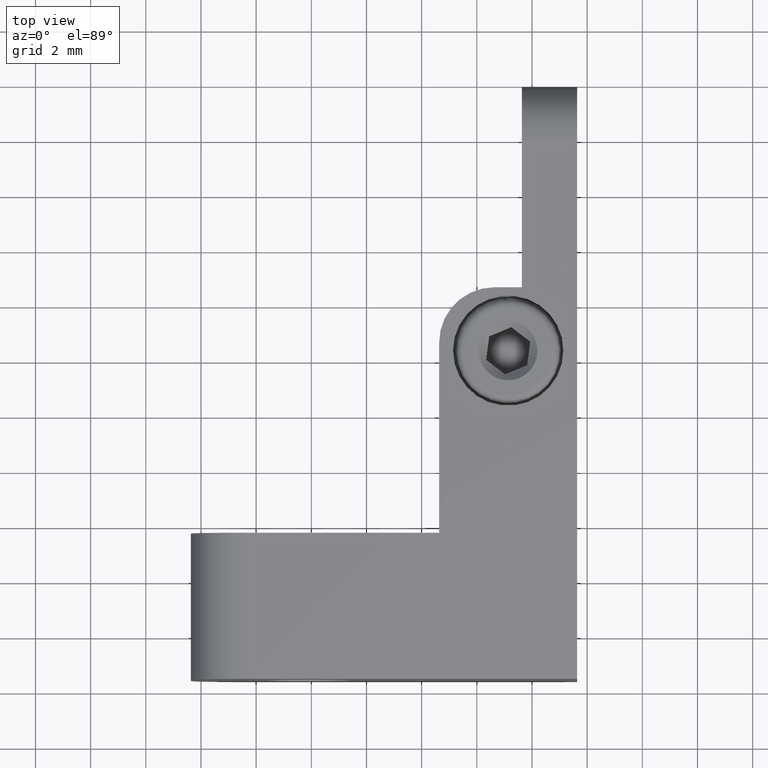
[diagram: clean part render]
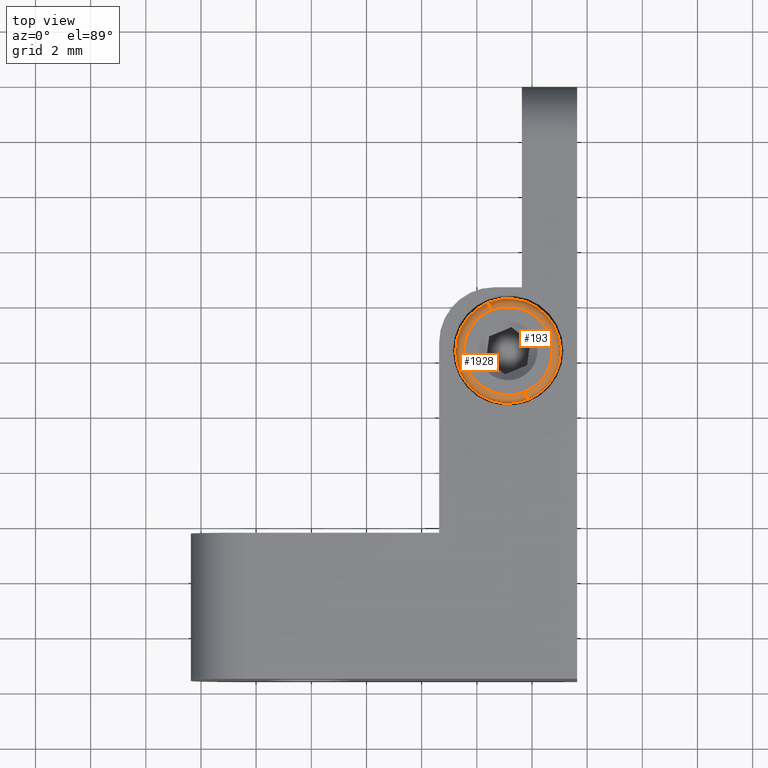
[diagram: same view with one multi-face feature highlighted, each face labeled with its STEP entity id]
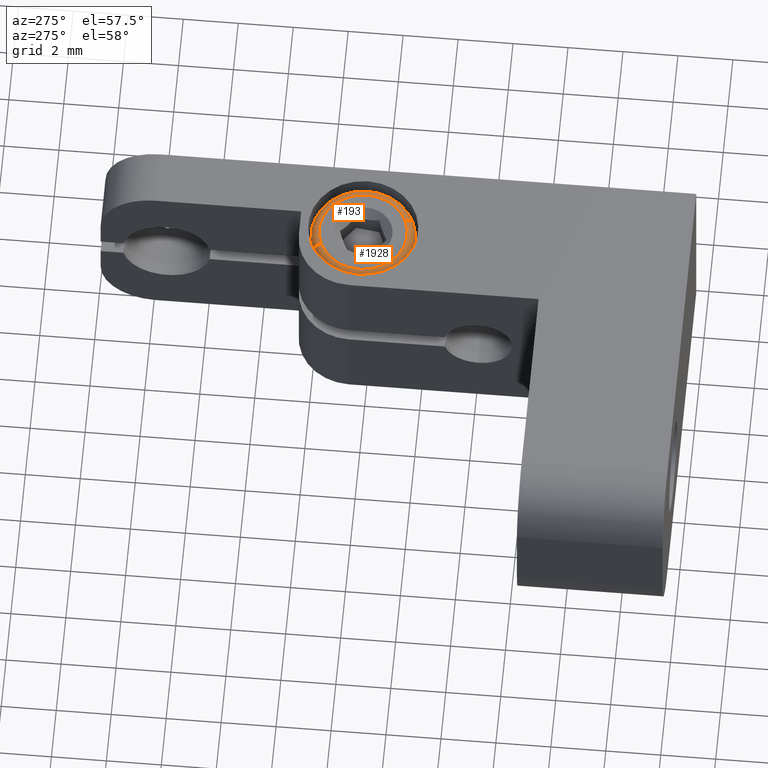
[diagram: same view with one multi-face feature highlighted, each face labeled with its STEP entity id]
A machine part, top view. The highlighted faces form ONE feature: a constant-radius fillet chain: 2 tangent blend faces with common blend radius 0.3 mm. The faces share edges in the B-rep.
A second angle (auxiliary view) of the same feature is appended — it is thin or edge-on in the first view.
Their STEP definitions:
[1] entity #1928 (Torus):
#125 = CIRCLE ( 'NONE', #1569, 1.600000000000013634 ) ;
#149 = CARTESIAN_POINT ( 'NONE',  ( -1.054711873393889420E-16, 1.700000000000000178, -1.899999999999999689 ) ) ;
#210 = DIRECTION ( 'NONE',  ( 5.551115123125734015E-17, 0.000000000000000000, 1.000000000000000000 ) ) ;
#257 = CIRCLE ( 'NONE', #1348, 0.2999999999999999334 ) ;
#286 = CIRCLE ( 'NONE', #947, 0.2999999999999999334 ) ;
#378 = DIRECTION ( 'NONE',  ( -0.000000000000000000, -1.000000000000000000, -0.000000000000000000 ) ) ;
#380 = DIRECTION ( 'NONE',  ( -1.000000000000000000, 0.000000000000000000, 5.551115123125734631E-17 ) ) ;
#393 = CIRCLE ( 'NONE', #1061, 1.900000000000016342 ) ;
#521 = FACE_OUTER_BOUND ( 'NONE', #1875, .T. ) ;
#554 = EDGE_CURVE ( 'NONE', #1201, #1514, #125, .T. ) ;
#556 = DIRECTION ( 'NONE',  ( 6.695352868347794976E-17, 0.000000000000000000, -1.000000000000000000 ) ) ;
#577 = CARTESIAN_POINT ( 'NONE',  ( 8.881784197001251584E-17, 1.999999999999998224, 1.600000000000013634 ) ) ;
#600 = VERTEX_POINT ( 'NONE', #1238 ) ;
#832 = CARTESIAN_POINT ( 'NONE',  ( 1.071256458935656835E-16, 1.700000000000000178, -1.600000000000013634 ) ) ;
#947 = AXIS2_PLACEMENT_3D ( 'NONE', #1523, #380, #2031 ) ;
#1025 = DIRECTION ( 'NONE',  ( 0.000000000000000000, 1.000000000000000000, 0.000000000000000000 ) ) ;
#1051 = DIRECTION ( 'NONE',  ( 0.000000000000000000, 1.000000000000000000, 0.000000000000000000 ) ) ;
#1061 = AXIS2_PLACEMENT_3D ( 'NONE', #1086, #378, #210 ) ;
#1086 = CARTESIAN_POINT ( 'NONE',  ( 0.000000000000000000, 1.700000000000000178, 0.000000000000000000 ) ) ;
#1152 = CARTESIAN_POINT ( 'NONE',  ( 1.171686751960863474E-16, 1.999999999999998224, -1.599999999999999867 ) ) ;
#1195 = CARTESIAN_POINT ( 'NONE',  ( 0.000000000000000000, 1.700000000000000178, 0.000000000000000000 ) ) ;
#1201 = VERTEX_POINT ( 'NONE', #1152 ) ;
#1238 = CARTESIAN_POINT ( 'NONE',  ( 3.381540791773859922E-16, 1.700000000000000178, 1.899999999999999689 ) ) ;
#1348 = AXIS2_PLACEMENT_3D ( 'NONE', #832, #1502, #556 ) ;
#1400 = DIRECTION ( 'NONE',  ( 5.551115123125735247E-17, 0.000000000000000000, 1.000000000000000000 ) ) ;
#1437 = EDGE_CURVE ( 'NONE', #2132, #1201, #257, .T. ) ;
#1469 = ORIENTED_EDGE ( 'NONE', *, *, #2029, .T. ) ;
#1502 = DIRECTION ( 'NONE',  ( 1.000000000000000000, -0.000000000000000000, 6.695352868347797441E-17 ) ) ;
#1514 = VERTEX_POINT ( 'NONE', #577 ) ;
#1522 = CARTESIAN_POINT ( 'NONE',  ( 0.000000000000000000, 1.999999999999998224, 0.000000000000000000 ) ) ;
#1523 = CARTESIAN_POINT ( 'NONE',  ( 8.881784197001251584E-17, 1.700000000000000178, 1.600000000000013634 ) ) ;
#1569 = AXIS2_PLACEMENT_3D ( 'NONE', #1522, #1051, #1400 ) ;
#1706 = DIRECTION ( 'NONE',  ( 5.551115123125734631E-17, 0.000000000000000000, 1.000000000000000000 ) ) ;
#1839 = AXIS2_PLACEMENT_3D ( 'NONE', #1195, #1025, #1706 ) ;
#1875 = EDGE_LOOP ( 'NONE', ( #2103, #2072, #1469, #1924 ) ) ;
#1914 = TOROIDAL_SURFACE ( 'NONE', #1839, 1.599999999999999867, 0.2999999999999999889 ) ;
#1924 = ORIENTED_EDGE ( 'NONE', *, *, #554, .F. ) ;
#1928 = ADVANCED_FACE ( 'NONE', ( #521 ), #1914, .T. ) ;
#1988 = EDGE_CURVE ( 'NONE', #600, #2132, #393, .T. ) ;
#2029 = EDGE_CURVE ( 'NONE', #600, #1514, #286, .T. ) ;
#2031 = DIRECTION ( 'NONE',  ( 5.551115123125734631E-17, 0.000000000000000000, 1.000000000000000000 ) ) ;
#2072 = ORIENTED_EDGE ( 'NONE', *, *, #1988, .F. ) ;
#2103 = ORIENTED_EDGE ( 'NONE', *, *, #1437, .F. ) ;
#2132 = VERTEX_POINT ( 'NONE', #149 ) ;
[2] entity #193 (Torus):
#68 = DIRECTION ( 'NONE',  ( 5.551115123125735247E-17, 0.000000000000000000, 1.000000000000000000 ) ) ;
#87 = FACE_OUTER_BOUND ( 'NONE', #288, .T. ) ;
#89 = AXIS2_PLACEMENT_3D ( 'NONE', #437, #1425, #1235 ) ;
#149 = CARTESIAN_POINT ( 'NONE',  ( -1.054711873393889420E-16, 1.700000000000000178, -1.899999999999999689 ) ) ;
#193 = ADVANCED_FACE ( 'NONE', ( #87 ), #1214, .T. ) ;
#257 = CIRCLE ( 'NONE', #1348, 0.2999999999999999334 ) ;
#286 = CIRCLE ( 'NONE', #947, 0.2999999999999999334 ) ;
#288 = EDGE_LOOP ( 'NONE', ( #2120, #931, #469, #1159 ) ) ;
#380 = DIRECTION ( 'NONE',  ( -1.000000000000000000, 0.000000000000000000, 5.551115123125734631E-17 ) ) ;
#437 = CARTESIAN_POINT ( 'NONE',  ( 0.000000000000000000, 1.700000000000000178, 0.000000000000000000 ) ) ;
#456 = CIRCLE ( 'NONE', #598, 1.900000000000016342 ) ;
#469 = ORIENTED_EDGE ( 'NONE', *, *, #825, .F. ) ;
#556 = DIRECTION ( 'NONE',  ( 6.695352868347794976E-17, 0.000000000000000000, -1.000000000000000000 ) ) ;
#577 = CARTESIAN_POINT ( 'NONE',  ( 8.881784197001251584E-17, 1.999999999999998224, 1.600000000000013634 ) ) ;
#598 = AXIS2_PLACEMENT_3D ( 'NONE', #1830, #934, #1783 ) ;
#600 = VERTEX_POINT ( 'NONE', #1238 ) ;
#729 = CARTESIAN_POINT ( 'NONE',  ( 0.000000000000000000, 1.999999999999998224, 0.000000000000000000 ) ) ;
#825 = EDGE_CURVE ( 'NONE', #1514, #1201, #1460, .T. ) ;
#832 = CARTESIAN_POINT ( 'NONE',  ( 1.071256458935656835E-16, 1.700000000000000178, -1.600000000000013634 ) ) ;
#931 = ORIENTED_EDGE ( 'NONE', *, *, #1437, .T. ) ;
#934 = DIRECTION ( 'NONE',  ( -0.000000000000000000, -1.000000000000000000, -0.000000000000000000 ) ) ;
#947 = AXIS2_PLACEMENT_3D ( 'NONE', #1523, #380, #2031 ) ;
#1152 = CARTESIAN_POINT ( 'NONE',  ( 1.171686751960863474E-16, 1.999999999999998224, -1.599999999999999867 ) ) ;
#1159 = ORIENTED_EDGE ( 'NONE', *, *, #2029, .F. ) ;
#1201 = VERTEX_POINT ( 'NONE', #1152 ) ;
#1214 = TOROIDAL_SURFACE ( 'NONE', #89, 1.599999999999999867, 0.2999999999999999889 ) ;
#1235 = DIRECTION ( 'NONE',  ( 5.551115123125734631E-17, 0.000000000000000000, 1.000000000000000000 ) ) ;
#1238 = CARTESIAN_POINT ( 'NONE',  ( 3.381540791773859922E-16, 1.700000000000000178, 1.899999999999999689 ) ) ;
#1348 = AXIS2_PLACEMENT_3D ( 'NONE', #832, #1502, #556 ) ;
#1425 = DIRECTION ( 'NONE',  ( 0.000000000000000000, 1.000000000000000000, 0.000000000000000000 ) ) ;
#1437 = EDGE_CURVE ( 'NONE', #2132, #1201, #257, .T. ) ;
#1460 = CIRCLE ( 'NONE', #1715, 1.600000000000013634 ) ;
#1502 = DIRECTION ( 'NONE',  ( 1.000000000000000000, -0.000000000000000000, 6.695352868347797441E-17 ) ) ;
#1514 = VERTEX_POINT ( 'NONE', #577 ) ;
#1523 = CARTESIAN_POINT ( 'NONE',  ( 8.881784197001251584E-17, 1.700000000000000178, 1.600000000000013634 ) ) ;
#1582 = DIRECTION ( 'NONE',  ( 0.000000000000000000, 1.000000000000000000, 0.000000000000000000 ) ) ;
#1715 = AXIS2_PLACEMENT_3D ( 'NONE', #729, #1582, #68 ) ;
#1732 = EDGE_CURVE ( 'NONE', #2132, #600, #456, .T. ) ;
#1783 = DIRECTION ( 'NONE',  ( 5.551115123125734015E-17, 0.000000000000000000, 1.000000000000000000 ) ) ;
#1830 = CARTESIAN_POINT ( 'NONE',  ( 0.000000000000000000, 1.700000000000000178, 0.000000000000000000 ) ) ;
#2029 = EDGE_CURVE ( 'NONE', #600, #1514, #286, .T. ) ;
#2031 = DIRECTION ( 'NONE',  ( 5.551115123125734631E-17, 0.000000000000000000, 1.000000000000000000 ) ) ;
#2120 = ORIENTED_EDGE ( 'NONE', *, *, #1732, .F. ) ;
#2132 = VERTEX_POINT ( 'NONE', #149 ) ;